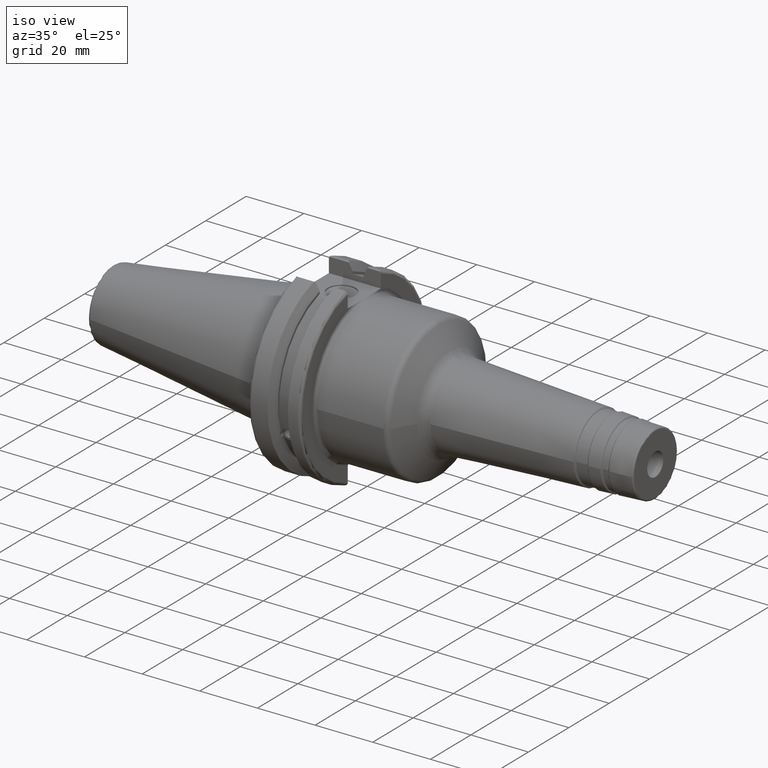
[diagram: clean part render]
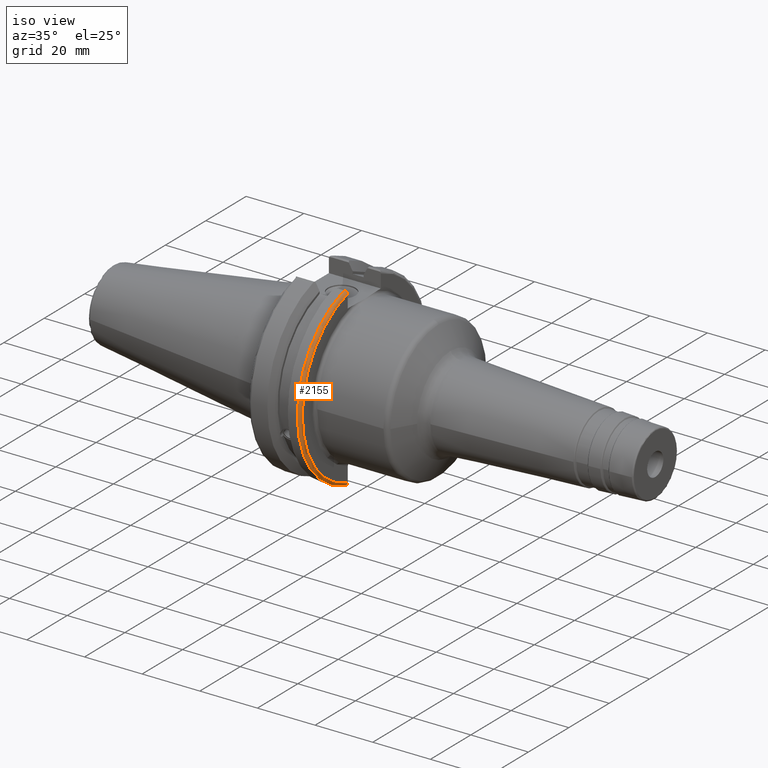
[diagram: same view with one face highlighted and labeled with its STEP entity id]
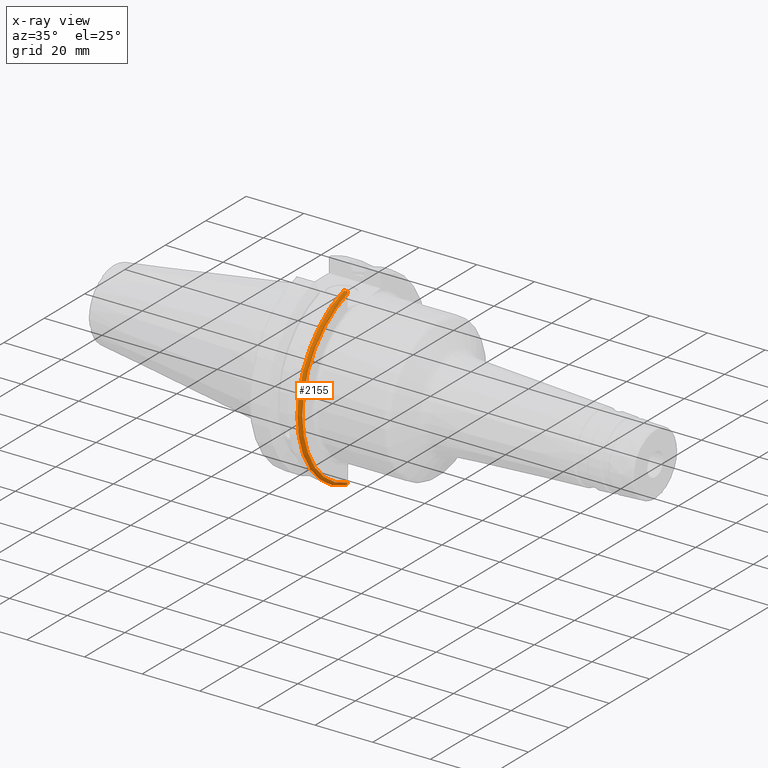
[diagram: x-ray of the same camera — body ghosted, the highlighted face saturated]
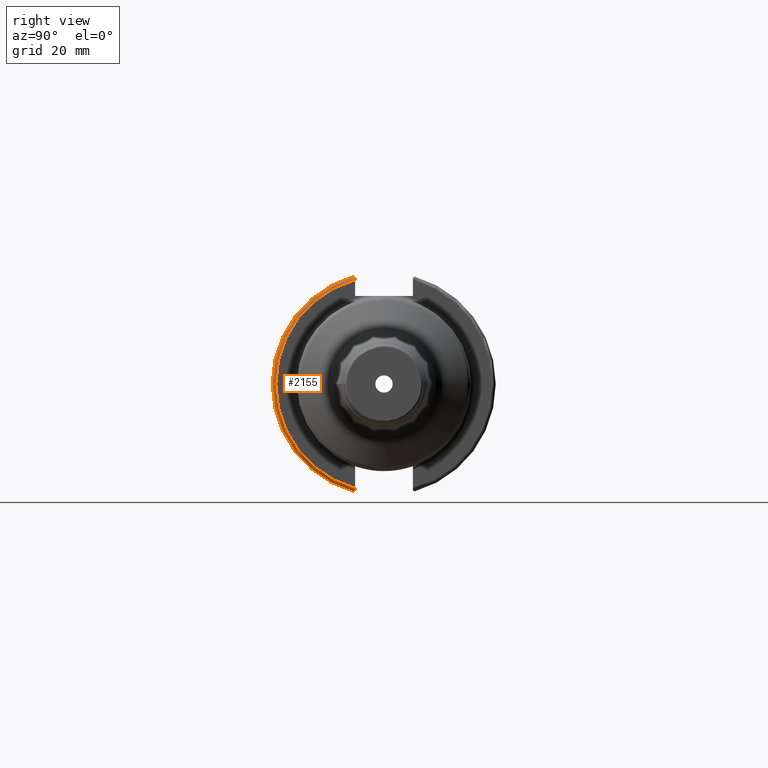
[diagram: same view with one face highlighted and labeled with its STEP entity id]
A machine part, iso view. The second image highlights one B-rep face of the part: STEP entity #2155.
The next image is the same camera in x-ray: the body ghosted, the highlighted face saturated — about 0% of this face is hidden behind the body in this view.
A second angle (right view) of the same face is appended — the face is thin or edge-on in the first view.
In plain terms, the highlighted toroidal blend (fillet) surface has major radius 30.75 mm and minor (blend) radius 1 mm.
Its self-contained STEP definition (entity closure, byte-faithful):
#107=B_SPLINE_CURVE_WITH_KNOTS('',3,(#4041,#4042,#4043,#4044,#4045,#4046),
 .UNSPECIFIED.,.F.,.F.,(4,2,4),(0.0977383630915687,0.112311108149119,0.150804350305566),
 .UNSPECIFIED.);
#108=B_SPLINE_CURVE_WITH_KNOTS('',3,(#4048,#4049,#4050,#4051,#4052,#4053),
 .UNSPECIFIED.,.F.,.F.,(4,2,4),(0.452741154494497,0.491581665024872,0.505824174364156),
 .UNSPECIFIED.);
#109=B_SPLINE_CURVE_WITH_KNOTS('',3,(#4055,#4056,#4057,#4058,#4059,#4060,
#4061,#4062),.UNSPECIFIED.,.F.,.F.,(4,2,2,4),(-0.104180282751876,-0.072978474246144,
-0.0343524753874979,0.),.UNSPECIFIED.);
#110=B_SPLINE_CURVE_WITH_KNOTS('',3,(#4065,#4066,#4067,#4068,#4069,#4070,
#4071,#4072),.UNSPECIFIED.,.F.,.F.,(4,2,2,4),(0.,0.0343524753874979,0.0729784742461441,
0.104180282751877),.UNSPECIFIED.);
#449=FACE_OUTER_BOUND('',#566,.T.);
#566=EDGE_LOOP('',(#1828,#1829,#1830,#1831,#1832,#1833));
#684=CIRCLE('',#2308,30.75);
#750=CIRCLE('',#2439,31.75);
#857=VERTEX_POINT('',#3424);
#858=VERTEX_POINT('',#3426);
#980=VERTEX_POINT('',#4040);
#981=VERTEX_POINT('',#4047);
#982=VERTEX_POINT('',#4054);
#983=VERTEX_POINT('',#4063);
#1120=EDGE_CURVE('',#858,#857,#684,.T.);
#1287=EDGE_CURVE('',#980,#858,#107,.T.);
#1288=EDGE_CURVE('',#857,#981,#108,.T.);
#1289=EDGE_CURVE('',#981,#982,#109,.T.);
#1290=EDGE_CURVE('',#982,#983,#750,.T.);
#1291=EDGE_CURVE('',#983,#980,#110,.T.);
#1828=ORIENTED_EDGE('',*,*,#1287,.T.);
#1829=ORIENTED_EDGE('',*,*,#1120,.T.);
#1830=ORIENTED_EDGE('',*,*,#1288,.T.);
#1831=ORIENTED_EDGE('',*,*,#1289,.T.);
#1832=ORIENTED_EDGE('',*,*,#1290,.T.);
#1833=ORIENTED_EDGE('',*,*,#1291,.T.);
#2083=TOROIDAL_SURFACE('',#2438,30.75,1.);
#2155=ADVANCED_FACE('',(#449),#2083,.T.);
#2308=AXIS2_PLACEMENT_3D('',#3427,#2717,#2718);
#2438=AXIS2_PLACEMENT_3D('',#4039,#3028,#3029);
#2439=AXIS2_PLACEMENT_3D('',#4064,#3030,#3031);
#2717=DIRECTION('center_axis',(-1.,0.,0.));
#2718=DIRECTION('ref_axis',(0.,-1.,1.60812264967664E-16));
#3028=DIRECTION('center_axis',(1.,0.,0.));
#3029=DIRECTION('ref_axis',(0.,0.,-1.));
#3030=DIRECTION('center_axis',(1.,0.,0.));
#3031=DIRECTION('ref_axis',(0.,-1.,1.60812264967664E-16));
#3424=CARTESIAN_POINT('',(19.05,-8.19,29.6392712461019));
#3426=CARTESIAN_POINT('',(19.05,-8.19,-29.6392712461019));
#3427=CARTESIAN_POINT('Origin',(19.05,0.,0.));
#4039=CARTESIAN_POINT('Origin',(18.05,0.,0.));
#4040=CARTESIAN_POINT('',(18.9058722749097,-8.19,-30.1755016258903));
#4041=CARTESIAN_POINT('Ctrl Pts',(18.9058722749097,-8.19,-30.1755016258903));
#4042=CARTESIAN_POINT('Ctrl Pts',(18.9324477233044,-8.19,-30.1299319366157));
#4043=CARTESIAN_POINT('Ctrl Pts',(18.9550700364447,-8.19,-30.0829389905409));
#4044=CARTESIAN_POINT('Ctrl Pts',(19.0210043632013,-8.19,-29.9188002007263));
#4045=CARTESIAN_POINT('Ctrl Pts',(19.05,-8.19,-29.76758205329));
#4046=CARTESIAN_POINT('Ctrl Pts',(19.05,-8.19,-29.6392712461019));
#4047=CARTESIAN_POINT('',(18.9058722749097,-8.19,30.1755016258903));
#4048=CARTESIAN_POINT('Ctrl Pts',(19.05,-8.19,29.6392712461019));
#4049=CARTESIAN_POINT('Ctrl Pts',(19.05,-8.19,29.7687396145364));
#4050=CARTESIAN_POINT('Ctrl Pts',(19.020485567083,-8.19,29.9212724384851));
#4051=CARTESIAN_POINT('Ctrl Pts',(18.9539643471756,-8.19,30.0852355256475));
#4052=CARTESIAN_POINT('Ctrl Pts',(18.9318163728133,-8.19,30.131014531546));
#4053=CARTESIAN_POINT('Ctrl Pts',(18.9058722749097,-8.19,30.1755016258903));
#4054=CARTESIAN_POINT('',(18.05,-8.67204822802685,30.5427254764662));
#4055=CARTESIAN_POINT('Ctrl Pts',(18.9058722749097,-8.19,30.1755016258903));
#4056=CARTESIAN_POINT('Ctrl Pts',(18.8574463042989,-8.2703682833078,30.2367261024977));
#4057=CARTESIAN_POINT('Ctrl Pts',(18.7926702662319,-8.34909446036477,30.2966996242308));
#4058=CARTESIAN_POINT('Ctrl Pts',(18.6396724190507,-8.48862804755883,30.4029961692546));
#4059=CARTESIAN_POINT('Ctrl Pts',(18.5184414294771,-8.56482138642532,30.4610401774263));
#4060=CARTESIAN_POINT('Ctrl Pts',(18.2983170433775,-8.6471881193939,30.5237870709558));
#4061=CARTESIAN_POINT('Ctrl Pts',(18.1645082512917,-8.67204822802685,30.5427254764662));
#4062=CARTESIAN_POINT('Ctrl Pts',(18.05,-8.67204822802685,30.5427254764662));
#4063=CARTESIAN_POINT('',(18.05,-8.67204822802685,-30.5427254764662));
#4064=CARTESIAN_POINT('Origin',(18.05,0.,0.));
#4065=CARTESIAN_POINT('Ctrl Pts',(18.05,-8.67204822802686,-30.5427254764662));
#4066=CARTESIAN_POINT('Ctrl Pts',(18.1645082512917,-8.67204822802686,-30.5427254764662));
#4067=CARTESIAN_POINT('Ctrl Pts',(18.2983170433775,-8.6471881193939,-30.5237870709558));
#4068=CARTESIAN_POINT('Ctrl Pts',(18.5184414294771,-8.56482138642532,-30.4610401774263));
#4069=CARTESIAN_POINT('Ctrl Pts',(18.6396724190507,-8.48862804755884,-30.4029961692546));
#4070=CARTESIAN_POINT('Ctrl Pts',(18.7926702662319,-8.34909446036477,-30.2966996242308));
#4071=CARTESIAN_POINT('Ctrl Pts',(18.8574463042989,-8.27036828330781,-30.2367261024977));
#4072=CARTESIAN_POINT('Ctrl Pts',(18.9058722749097,-8.19,-30.1755016258903));